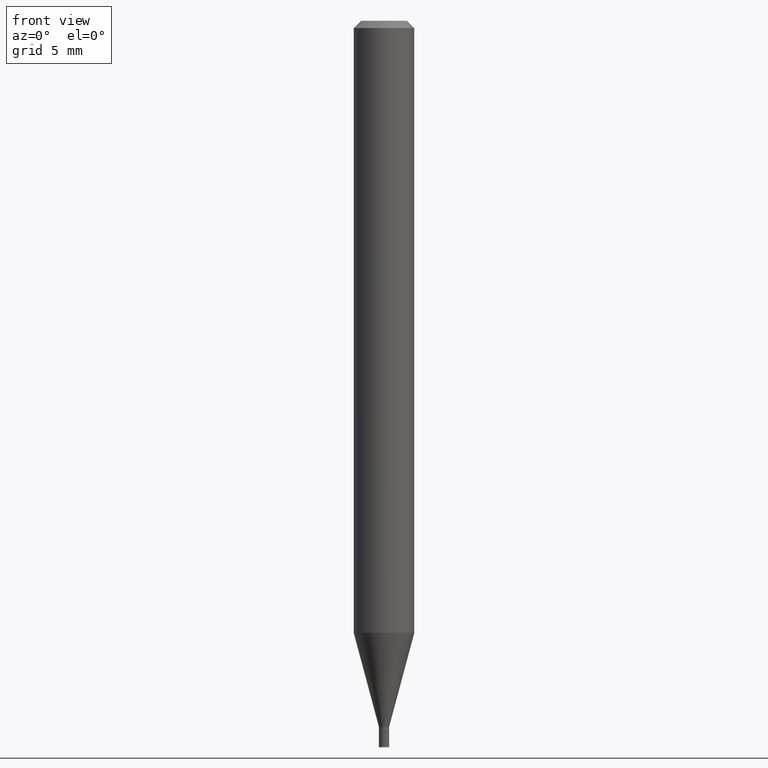
[diagram: clean part render]
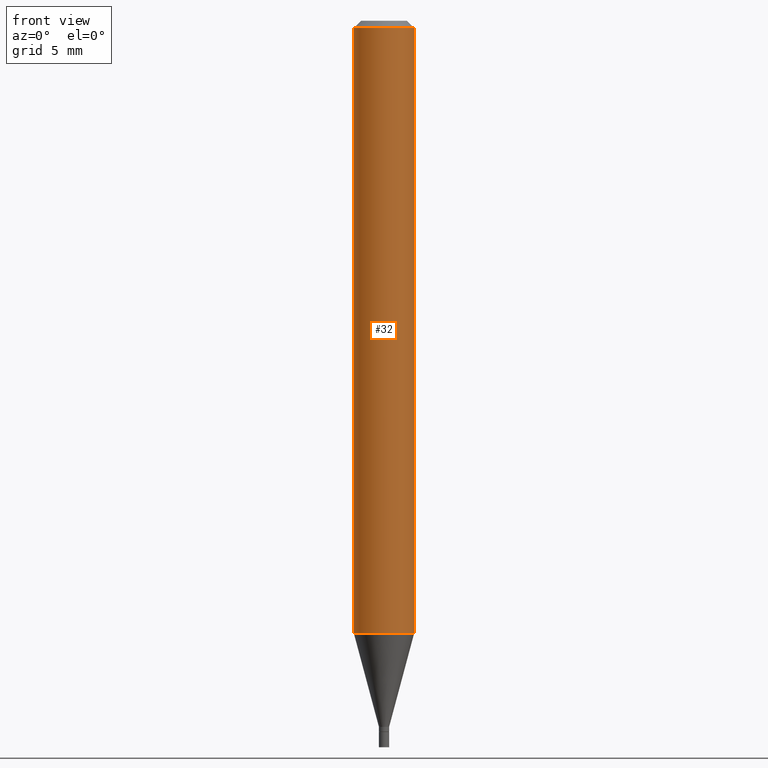
[diagram: same view with one face highlighted and labeled with its STEP entity id]
A machine part, front view. The second image highlights one B-rep face of the part: STEP entity #32.
In plain terms, the highlighted cylindrical surface (edge-blend (fillet) strip) has radius 1.5875 mm, axis along (-0, 0, 1).
Its self-contained STEP definition (entity closure, byte-faithful):
#3 = LINE ( 'NONE', #438, #330 ) ;
#10 = CARTESIAN_POINT ( 'NONE',  ( 0.06250000000000000000, -4.849434900376155208E-15, -1.263933358006418706 ) ) ;
#15 = DIRECTION ( 'NONE',  ( -2.445468806185136877E-29, 3.491481338843145188E-15, 1.000000000000000000 ) ) ;
#20 = CIRCLE ( 'NONE', #227, 0.06250000000000000000 ) ;
#32 = ADVANCED_FACE ( 'NONE', ( #175 ), #394, .T. ) ;
#33 = VECTOR ( 'NONE', #15, 39.37007874015748143 ) ;
#53 = DIRECTION ( 'NONE',  ( -2.445468806185136597E-29, 3.491481338843145583E-15, 1.000000000000000000 ) ) ;
#64 = DIRECTION ( 'NONE',  ( 1.000000000000000000, -6.982962677686266711E-15, 4.876176775795935793E-29 ) ) ;
#90 = VERTEX_POINT ( 'NONE', #141 ) ;
#108 = CARTESIAN_POINT ( 'NONE',  ( 0.000000000000000000, 0.000000000000000000, 0.000000000000000000 ) ) ;
#141 = CARTESIAN_POINT ( 'NONE',  ( -0.06250000000000000000, -1.788596766701642890E-15, -0.01499999999999999944 ) ) ;
#150 = ORIENTED_EDGE ( 'NONE', *, *, #180, .F. ) ;
#163 = AXIS2_PLACEMENT_3D ( 'NONE', #108, #395, #64 ) ;
#175 = FACE_OUTER_BOUND ( 'NONE', #413, .T. ) ;
#180 = EDGE_CURVE ( 'NONE', #335, #90, #383, .T. ) ;
#184 = ORIENTED_EDGE ( 'NONE', *, *, #287, .T. ) ;
#186 = DIRECTION ( 'NONE',  ( 1.000000000000000000, -6.982962677686266711E-15, 0.000000000000000000 ) ) ;
#189 = VERTEX_POINT ( 'NONE', #314 ) ;
#223 = VERTEX_POINT ( 'NONE', #10 ) ;
#227 = AXIS2_PLACEMENT_3D ( 'NONE', #231, #53, #309 ) ;
#231 = CARTESIAN_POINT ( 'NONE',  ( 3.090909600101528156E-29, -4.412999733020764327E-15, -1.263933358006418706 ) ) ;
#241 = EDGE_CURVE ( 'NONE', #335, #223, #20, .T. ) ;
#256 = DIRECTION ( 'NONE',  ( -2.445468806185136877E-29, 3.491481338843145188E-15, 1.000000000000000000 ) ) ;
#277 = ORIENTED_EDGE ( 'NONE', *, *, #407, .F. ) ;
#287 = EDGE_CURVE ( 'NONE', #223, #189, #3, .T. ) ;
#289 = ORIENTED_EDGE ( 'NONE', *, *, #241, .T. ) ;
#309 = DIRECTION ( 'NONE',  ( 1.000000000000000000, -6.982962677686262766E-15, 0.000000000000000000 ) ) ;
#314 = CARTESIAN_POINT ( 'NONE',  ( 0.06250000000000000000, -4.888073874380388472E-16, -0.01499999999999999944 ) ) ;
#330 = VECTOR ( 'NONE', #256, 39.37007874015748143 ) ;
#335 = VERTEX_POINT ( 'NONE', #454 ) ;
#346 = CARTESIAN_POINT ( 'NONE',  ( -0.06250000000000000000, 4.440892098500626162E-16, -3.074334431409316114E-30 ) ) ;
#370 = DIRECTION ( 'NONE',  ( -2.445468806185136597E-29, 3.491481338843145583E-15, 1.000000000000000000 ) ) ;
#383 = LINE ( 'NONE', #346, #33 ) ;
#394 = CYLINDRICAL_SURFACE ( 'NONE', #163, 0.06250000000000000000 ) ;
#395 = DIRECTION ( 'NONE',  ( -2.445468806185136597E-29, 3.491481338843145583E-15, 1.000000000000000000 ) ) ;
#398 = CIRCLE ( 'NONE', #433, 0.06250000000000000000 ) ;
#407 = EDGE_CURVE ( 'NONE', #90, #189, #398, .T. ) ;
#413 = EDGE_LOOP ( 'NONE', ( #150, #289, #184, #277 ) ) ;
#433 = AXIS2_PLACEMENT_3D ( 'NONE', #437, #370, #186 ) ;
#437 = CARTESIAN_POINT ( 'NONE',  ( 3.668203209277705088E-31, -5.237222008264718399E-17, -0.01499999999999999944 ) ) ;
#438 = CARTESIAN_POINT ( 'NONE',  ( 0.06250000000000000000, -4.364351673553916694E-16, 3.047610484872459871E-30 ) ) ;
#454 = CARTESIAN_POINT ( 'NONE',  ( -0.06250000000000000000, -3.968910523170700922E-15, -1.263933358006418706 ) ) ;